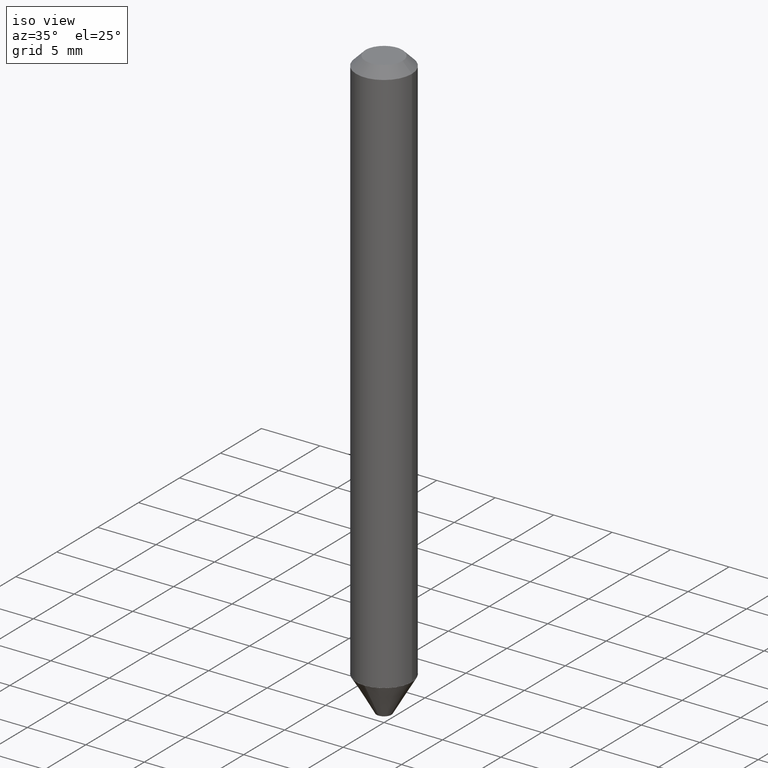
[diagram: clean part render]
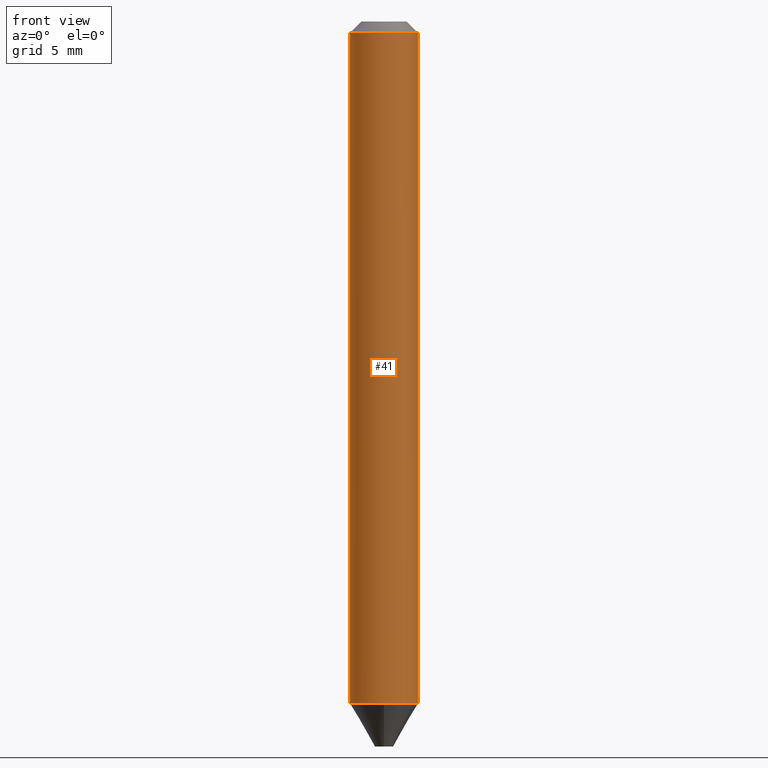
[diagram: tour spotlight — one face highlighted and labeled with its STEP entity id]
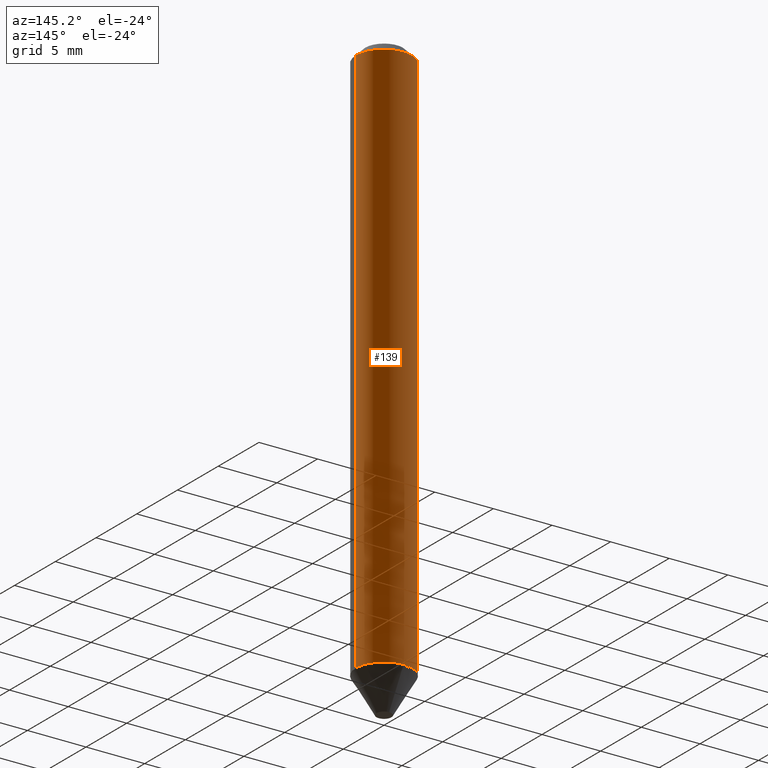
[diagram: tour spotlight — one face highlighted and labeled with its STEP entity id]
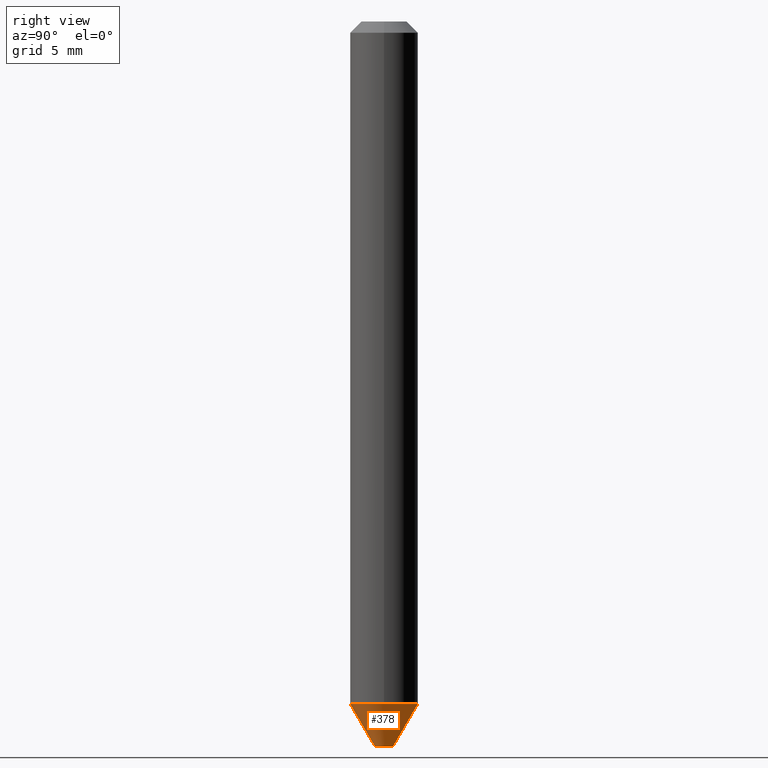
[diagram: tour spotlight — one face highlighted and labeled with its STEP entity id]
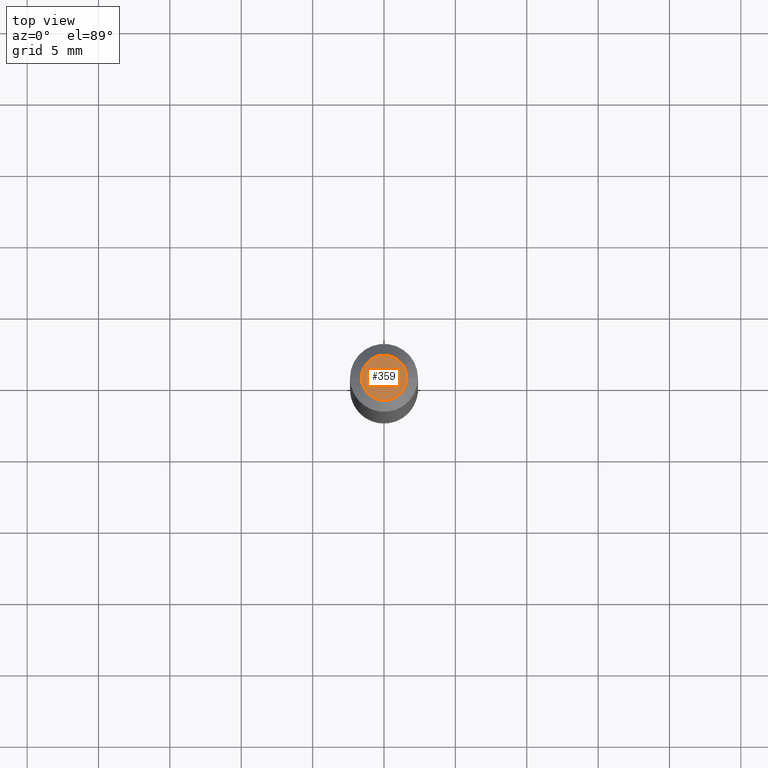
[diagram: tour spotlight — one face highlighted and labeled with its STEP entity id]
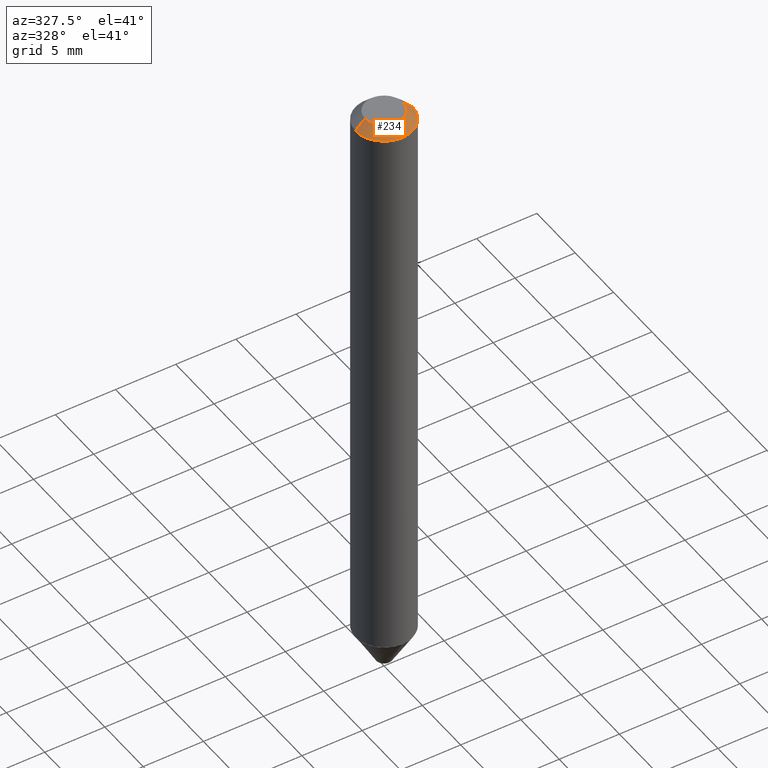
[diagram: tour spotlight — one face highlighted and labeled with its STEP entity id]
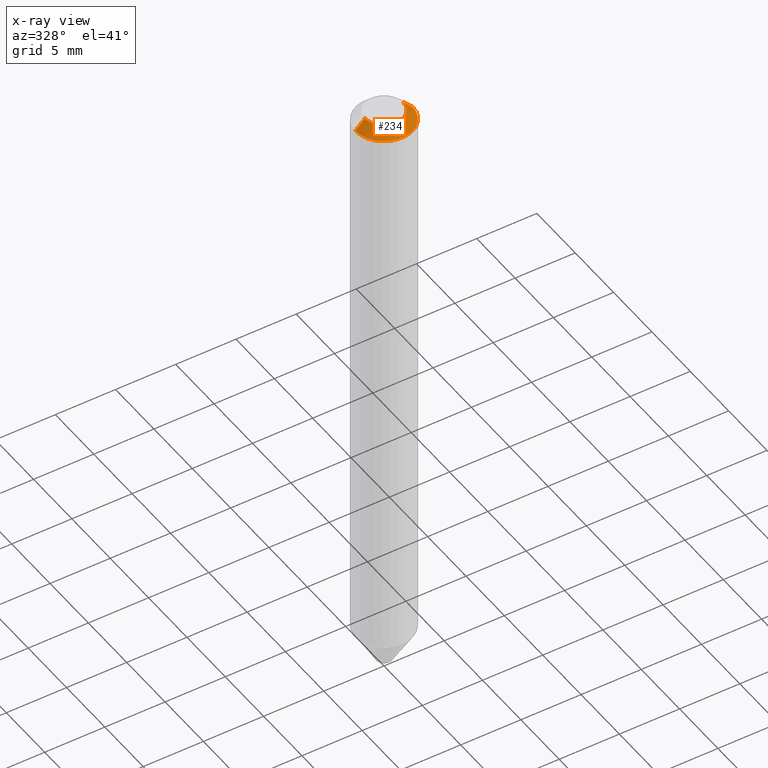
[diagram: x-ray of the same camera — body ghosted, this tour face saturated]
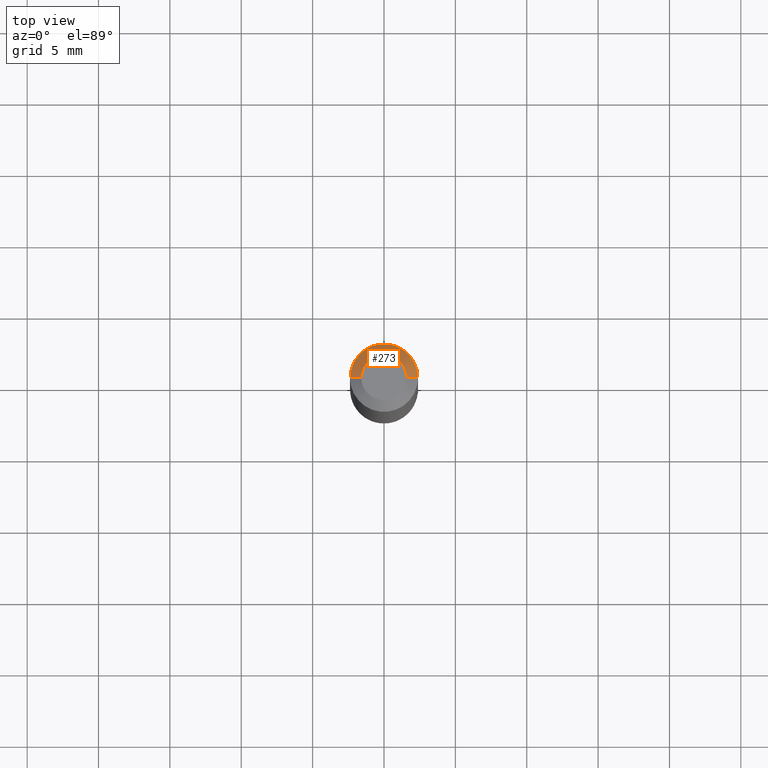
[diagram: tour spotlight — one face highlighted and labeled with its STEP entity id]
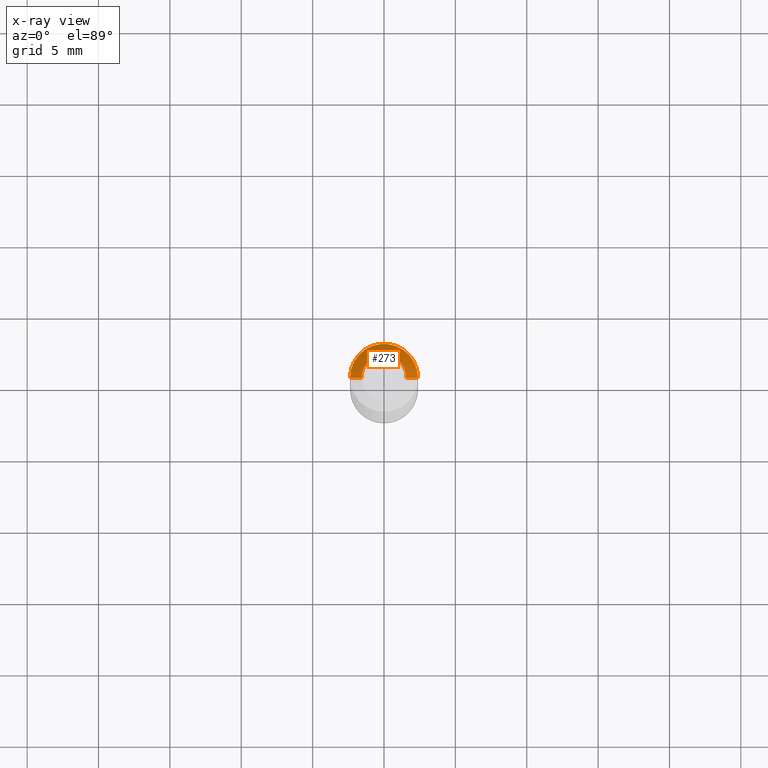
[diagram: x-ray of the same camera — body ghosted, this tour face saturated]
A machine part: a face-by-face anatomy tour. The part has 14 B-rep faces; the first image is the clean iso view, then the 6 largest visible faces are spotlighted one at a time (largest first), each with its STEP entity span.

Face 1 — front view, entity #41. In plain terms, the highlighted cylindrical surface (edge-blend (fillet) strip) has radius 2.3813 mm, axis along (-0, 0, 1).
Definition (entity closure, byte-faithful):
#19 = ORIENTED_EDGE ( 'NONE', *, *, #304, .F. ) ;
#29 = DIRECTION ( 'NONE',  ( -2.445468806185136597E-29, 3.491481338843145583E-15, 1.000000000000000000 ) ) ;
#41 = ADVANCED_FACE ( 'NONE', ( #410 ), #88, .T. ) ;
#42 = EDGE_LOOP ( 'NONE', ( #19, #360, #75, #89 ) ) ;
#66 = CARTESIAN_POINT ( 'NONE',  ( 0.09375000000000011102, -6.546527510330881944E-16, 4.571415727308695411E-30 ) ) ;
#75 = ORIENTED_EDGE ( 'NONE', *, *, #276, .T. ) ;
#76 = CARTESIAN_POINT ( 'NONE',  ( -0.09375000000000011102, 6.661338147750947131E-16, -4.611501647113979600E-30 ) ) ;
#88 = CYLINDRICAL_SURFACE ( 'NONE', #148, 0.09375000000000011102 ) ;
#89 = ORIENTED_EDGE ( 'NONE', *, *, #224, .F. ) ;
#94 = EDGE_CURVE ( 'NONE', #143, #262, #206, .T. ) ;
#113 = DIRECTION ( 'NONE',  ( -2.445468806185136597E-29, 3.491481338843145583E-15, 1.000000000000000000 ) ) ;
#143 = VERTEX_POINT ( 'NONE', #164 ) ;
#146 = VERTEX_POINT ( 'NONE', #229 ) ;
#148 = AXIS2_PLACEMENT_3D ( 'NONE', #306, #29, #402 ) ;
#163 = DIRECTION ( 'NONE',  ( -2.445468806185136877E-29, 3.491481338843145188E-15, 1.000000000000000000 ) ) ;
#164 = CARTESIAN_POINT ( 'NONE',  ( -0.09375000000000020817, -5.901068526673041974E-15, -1.880921506979639224 ) ) ;
#165 = CARTESIAN_POINT ( 'NONE',  ( 0.09375000000000020817, -7.221855092481226558E-15, -1.880921506979639224 ) ) ;
#169 = DIRECTION ( 'NONE',  ( -2.445468806185136877E-29, 3.491481338843145188E-15, 1.000000000000000000 ) ) ;
#183 = CIRCLE ( 'NONE', #294, 0.09375000000000001388 ) ;
#192 = DIRECTION ( 'NONE',  ( -2.445468806185136597E-29, 3.491481338843145583E-15, 1.000000000000000000 ) ) ;
#206 = CIRCLE ( 'NONE', #286, 0.09375000000000020817 ) ;
#207 = CARTESIAN_POINT ( 'NONE',  ( 0.09375000000000001388, -7.637615428719365062E-16, -0.03125000000000020123 ) ) ;
#215 = CARTESIAN_POINT ( 'NONE',  ( 4.599734872201446388E-29, -6.567202341448137476E-15, -1.880921506979639224 ) ) ;
#223 = LINE ( 'NONE', #66, #369 ) ;
#224 = EDGE_CURVE ( 'NONE', #146, #332, #183, .T. ) ;
#229 = CARTESIAN_POINT ( 'NONE',  ( -0.09375000000000001388, -2.672021751868397392E-15, -0.03125000000000020123 ) ) ;
#251 = DIRECTION ( 'NONE',  ( 1.000000000000000000, -6.982962677686268288E-15, 0.000000000000000000 ) ) ;
#262 = VERTEX_POINT ( 'NONE', #165 ) ;
#276 = EDGE_CURVE ( 'NONE', #262, #332, #223, .T. ) ;
#286 = AXIS2_PLACEMENT_3D ( 'NONE', #215, #113, #251 ) ;
#289 = LINE ( 'NONE', #76, #416 ) ;
#294 = AXIS2_PLACEMENT_3D ( 'NONE', #350, #192, #383 ) ;
#304 = EDGE_CURVE ( 'NONE', #143, #146, #289, .T. ) ;
#306 = CARTESIAN_POINT ( 'NONE',  ( 0.000000000000000000, 0.000000000000000000, 0.000000000000000000 ) ) ;
#332 = VERTEX_POINT ( 'NONE', #207 ) ;
#350 = CARTESIAN_POINT ( 'NONE',  ( 7.642090019328600035E-31, -1.091087918388489897E-16, -0.03125000000000020123 ) ) ;
#360 = ORIENTED_EDGE ( 'NONE', *, *, #94, .T. ) ;
#369 = VECTOR ( 'NONE', #163, 39.37007874015748143 ) ;
#383 = DIRECTION ( 'NONE',  ( 1.000000000000000000, -6.982962677686265922E-15, 0.000000000000000000 ) ) ;
#402 = DIRECTION ( 'NONE',  ( 1.000000000000000000, -6.982962677686265922E-15, 4.876176775795935793E-29 ) ) ;
#410 = FACE_OUTER_BOUND ( 'NONE', #42, .T. ) ;
#416 = VECTOR ( 'NONE', #169, 39.37007874015748143 ) ;

Face 2 — auxiliary view, entity #139. In plain terms, the highlighted cylindrical surface (edge-blend (fillet) strip) has radius 2.3813 mm, axis along (-0, 0, 1).
Definition (entity closure, byte-faithful):
#11 = ORIENTED_EDGE ( 'NONE', *, *, #120, .F. ) ;
#20 = AXIS2_PLACEMENT_3D ( 'NONE', #122, #96, #252 ) ;
#55 = AXIS2_PLACEMENT_3D ( 'NONE', #413, #199, #158 ) ;
#66 = CARTESIAN_POINT ( 'NONE',  ( 0.09375000000000011102, -6.546527510330881944E-16, 4.571415727308695411E-30 ) ) ;
#76 = CARTESIAN_POINT ( 'NONE',  ( -0.09375000000000011102, 6.661338147750947131E-16, -4.611501647113979600E-30 ) ) ;
#96 = DIRECTION ( 'NONE',  ( -2.445468806185136597E-29, 3.491481338843145583E-15, 1.000000000000000000 ) ) ;
#117 = CARTESIAN_POINT ( 'NONE',  ( 7.642090019328600035E-31, -1.091087918388489897E-16, -0.03125000000000020123 ) ) ;
#120 = EDGE_CURVE ( 'NONE', #332, #146, #225, .T. ) ;
#122 = CARTESIAN_POINT ( 'NONE',  ( 4.599734872201446388E-29, -6.567202341448137476E-15, -1.880921506979639224 ) ) ;
#139 = ADVANCED_FACE ( 'NONE', ( #187 ), #278, .T. ) ;
#143 = VERTEX_POINT ( 'NONE', #164 ) ;
#146 = VERTEX_POINT ( 'NONE', #229 ) ;
#152 = ORIENTED_EDGE ( 'NONE', *, *, #304, .T. ) ;
#158 = DIRECTION ( 'NONE',  ( 1.000000000000000000, -6.982962677686265922E-15, 4.876176775795935793E-29 ) ) ;
#163 = DIRECTION ( 'NONE',  ( -2.445468806185136877E-29, 3.491481338843145188E-15, 1.000000000000000000 ) ) ;
#164 = CARTESIAN_POINT ( 'NONE',  ( -0.09375000000000020817, -5.901068526673041974E-15, -1.880921506979639224 ) ) ;
#165 = CARTESIAN_POINT ( 'NONE',  ( 0.09375000000000020817, -7.221855092481226558E-15, -1.880921506979639224 ) ) ;
#169 = DIRECTION ( 'NONE',  ( -2.445468806185136877E-29, 3.491481338843145188E-15, 1.000000000000000000 ) ) ;
#171 = ORIENTED_EDGE ( 'NONE', *, *, #188, .T. ) ;
#181 = AXIS2_PLACEMENT_3D ( 'NONE', #117, #367, #370 ) ;
#187 = FACE_OUTER_BOUND ( 'NONE', #205, .T. ) ;
#188 = EDGE_CURVE ( 'NONE', #262, #143, #377, .T. ) ;
#199 = DIRECTION ( 'NONE',  ( -2.445468806185136597E-29, 3.491481338843145583E-15, 1.000000000000000000 ) ) ;
#205 = EDGE_LOOP ( 'NONE', ( #171, #152, #11, #210 ) ) ;
#207 = CARTESIAN_POINT ( 'NONE',  ( 0.09375000000000001388, -7.637615428719365062E-16, -0.03125000000000020123 ) ) ;
#210 = ORIENTED_EDGE ( 'NONE', *, *, #276, .F. ) ;
#223 = LINE ( 'NONE', #66, #369 ) ;
#225 = CIRCLE ( 'NONE', #181, 0.09375000000000001388 ) ;
#229 = CARTESIAN_POINT ( 'NONE',  ( -0.09375000000000001388, -2.672021751868397392E-15, -0.03125000000000020123 ) ) ;
#252 = DIRECTION ( 'NONE',  ( 1.000000000000000000, -6.982962677686268288E-15, 0.000000000000000000 ) ) ;
#262 = VERTEX_POINT ( 'NONE', #165 ) ;
#276 = EDGE_CURVE ( 'NONE', #262, #332, #223, .T. ) ;
#278 = CYLINDRICAL_SURFACE ( 'NONE', #55, 0.09375000000000011102 ) ;
#289 = LINE ( 'NONE', #76, #416 ) ;
#304 = EDGE_CURVE ( 'NONE', #143, #146, #289, .T. ) ;
#332 = VERTEX_POINT ( 'NONE', #207 ) ;
#367 = DIRECTION ( 'NONE',  ( -2.445468806185136597E-29, 3.491481338843145583E-15, 1.000000000000000000 ) ) ;
#369 = VECTOR ( 'NONE', #163, 39.37007874015748143 ) ;
#370 = DIRECTION ( 'NONE',  ( 1.000000000000000000, -6.982962677686265922E-15, 0.000000000000000000 ) ) ;
#377 = CIRCLE ( 'NONE', #20, 0.09375000000000020817 ) ;
#413 = CARTESIAN_POINT ( 'NONE',  ( 0.000000000000000000, 0.000000000000000000, 0.000000000000000000 ) ) ;
#416 = VECTOR ( 'NONE', #169, 39.37007874015748143 ) ;

Face 3 — right view, entity #378. In plain terms, the highlighted conical surface has half-angle 30.21 deg.
Definition (entity closure, byte-faithful):
#26 = EDGE_CURVE ( 'NONE', #82, #259, #405, .T. ) ;
#30 = DIRECTION ( 'NONE',  ( 2.450229196497135613E-29, -3.484664188971772409E-15, -1.000000000000000000 ) ) ;
#34 = CARTESIAN_POINT ( 'NONE',  ( 4.602182721202787017E-29, -6.570690414212044123E-15, -1.881921506979639114 ) ) ;
#36 = CARTESIAN_POINT ( 'NONE',  ( 6.546527510331342441E-16, 0.09374999999999353295, -1.881921506979639336 ) ) ;
#58 = CARTESIAN_POINT ( 'NONE',  ( -6.546527510330419474E-16, -0.09375000000000663358, -1.881921506979638670 ) ) ;
#61 = ORIENTED_EDGE ( 'NONE', *, *, #211, .T. ) ;
#82 = VERTEX_POINT ( 'NONE', #150 ) ;
#90 = EDGE_LOOP ( 'NONE', ( #395, #61, #213, #277 ) ) ;
#91 = DIRECTION ( 'NONE',  ( 2.450229196497135613E-29, -3.484664188971772409E-15, -1.000000000000000000 ) ) ;
#142 = CARTESIAN_POINT ( 'NONE',  ( 4.218847493576065508E-16, 0.02499999999999288555, -2.000000000000000444 ) ) ;
#150 = CARTESIAN_POINT ( 'NONE',  ( -4.146134089875742612E-16, -0.02500000000000685355, -2.000000000000000444 ) ) ;
#160 = EDGE_CURVE ( 'NONE', #323, #82, #401, .T. ) ;
#166 = VECTOR ( 'NONE', #347, 39.37007874015747433 ) ;
#193 = EDGE_CURVE ( 'NONE', #269, #259, #280, .T. ) ;
#196 = CARTESIAN_POINT ( 'NONE',  ( 4.891502092279659447E-29, -6.982154310327850672E-15, -2.000000000000000444 ) ) ;
#209 = DIRECTION ( 'NONE',  ( -6.982962677686266711E-15, -1.000000000000000000, 2.913971193241879189E-15 ) ) ;
#211 = EDGE_CURVE ( 'NONE', #323, #269, #315, .T. ) ;
#213 = ORIENTED_EDGE ( 'NONE', *, *, #193, .T. ) ;
#218 = AXIS2_PLACEMENT_3D ( 'NONE', #34, #91, #279 ) ;
#254 = CARTESIAN_POINT ( 'NONE',  ( -6.431716872910350342E-16, -0.09375000000000657807, -1.881921506979638670 ) ) ;
#259 = VERTEX_POINT ( 'NONE', #254 ) ;
#266 = FACE_OUTER_BOUND ( 'NONE', #90, .T. ) ;
#268 = CONICAL_SURFACE ( 'NONE', #303, 0.09375000000000005551, 0.5272581712179652547 ) ;
#269 = VERTEX_POINT ( 'NONE', #36 ) ;
#277 = ORIENTED_EDGE ( 'NONE', *, *, #26, .F. ) ;
#279 = DIRECTION ( 'NONE',  ( 6.982962677686266711E-15, 1.000000000000000000, -2.913971193241879189E-15 ) ) ;
#280 = CIRCLE ( 'NONE', #218, 0.09375000000000005551 ) ;
#284 = CARTESIAN_POINT ( 'NONE',  ( 6.661338147751401712E-16, 0.09374999999999349132, -1.881921506979639336 ) ) ;
#301 = DIRECTION ( 'NONE',  ( -3.513587825459242834E-15, -0.5031657747057287633, 0.8641899115152779087 ) ) ;
#303 = AXIS2_PLACEMENT_3D ( 'NONE', #319, #388, #209 ) ;
#315 = LINE ( 'NONE', #284, #166 ) ;
#319 = CARTESIAN_POINT ( 'NONE',  ( 4.602182721202787017E-29, -6.570690414212044123E-15, -1.881921506979639114 ) ) ;
#323 = VERTEX_POINT ( 'NONE', #142 ) ;
#347 = DIRECTION ( 'NONE',  ( 3.575207861002587345E-15, 0.5031657747057348695, 0.8641899115152744670 ) ) ;
#355 = VECTOR ( 'NONE', #301, 39.37007874015748143 ) ;
#378 = ADVANCED_FACE ( 'NONE', ( #266 ), #268, .T. ) ;
#379 = AXIS2_PLACEMENT_3D ( 'NONE', #196, #30, #411 ) ;
#388 = DIRECTION ( 'NONE',  ( -2.450229196497135613E-29, 3.484664188971772409E-15, 1.000000000000000000 ) ) ;
#395 = ORIENTED_EDGE ( 'NONE', *, *, #160, .F. ) ;
#401 = CIRCLE ( 'NONE', #379, 0.02499999999999986955 ) ;
#405 = LINE ( 'NONE', #58, #355 ) ;
#411 = DIRECTION ( 'NONE',  ( 6.982962677686265922E-15, 1.000000000000000000, 0.000000000000000000 ) ) ;

Face 4 — top view, entity #359. In plain terms, the highlighted planar face has unit normal (0, -0, -1).
Definition (entity closure, byte-faithful):
#1 = DIRECTION ( 'NONE',  ( 1.000000000000000000, -6.982962677686265922E-15, 4.876242311950516125E-29 ) ) ;
#28 = CARTESIAN_POINT ( 'NONE',  ( 0.06250000000000001388, -5.905308019953255522E-16, 3.827021247339070247E-18 ) ) ;
#43 = DIRECTION ( 'NONE',  ( 1.000000000000000000, -6.982962677686265922E-15, 4.876242311950516125E-29 ) ) ;
#46 = PLANE ( 'NONE',  #72 ) ;
#67 = CARTESIAN_POINT ( 'NONE',  ( -9.358861080966648015E-47, 1.336197326842804765E-32, 3.827021247335480313E-18 ) ) ;
#72 = AXIS2_PLACEMENT_3D ( 'NONE', #78, #261, #170 ) ;
#73 = VERTEX_POINT ( 'NONE', #28 ) ;
#78 = CARTESIAN_POINT ( 'NONE',  ( -4.679430540483324007E-47, 6.680986634214023823E-33, 1.913510623667740157E-18 ) ) ;
#110 = CIRCLE ( 'NONE', #356, 0.06250000000000001388 ) ;
#134 = ORIENTED_EDGE ( 'NONE', *, *, #172, .T. ) ;
#140 = DIRECTION ( 'NONE',  ( -2.445468806185136597E-29, 3.491481338843145583E-15, 1.000000000000000000 ) ) ;
#170 = DIRECTION ( 'NONE',  ( -1.000000000000000000, 6.982962677686265922E-15, -4.876176775795935793E-29 ) ) ;
#172 = EDGE_CURVE ( 'NONE', #180, #73, #344, .T. ) ;
#180 = VERTEX_POINT ( 'NONE', #317 ) ;
#185 = EDGE_LOOP ( 'NONE', ( #134, #363 ) ) ;
#203 = AXIS2_PLACEMENT_3D ( 'NONE', #343, #376, #1 ) ;
#261 = DIRECTION ( 'NONE',  ( 2.438088387897960049E-29, -3.491481338843145188E-15, -1.000000000000000000 ) ) ;
#287 = EDGE_CURVE ( 'NONE', #73, #180, #110, .T. ) ;
#291 = FACE_OUTER_BOUND ( 'NONE', #185, .T. ) ;
#317 = CARTESIAN_POINT ( 'NONE',  ( -0.06250000000000001388, 4.909895632748152337E-16, 3.827021247332237047E-18 ) ) ;
#343 = CARTESIAN_POINT ( 'NONE',  ( -9.358861080966648015E-47, 1.336197326842804765E-32, 3.827021247335480313E-18 ) ) ;
#344 = CIRCLE ( 'NONE', #203, 0.06250000000000001388 ) ;
#356 = AXIS2_PLACEMENT_3D ( 'NONE', #67, #140, #43 ) ;
#359 = ADVANCED_FACE ( 'NONE', ( #291 ), #46, .F. ) ;
#363 = ORIENTED_EDGE ( 'NONE', *, *, #287, .T. ) ;
#376 = DIRECTION ( 'NONE',  ( -2.445468806185136597E-29, 3.491481338843145583E-15, 1.000000000000000000 ) ) ;

Face 5 — auxiliary view, entity #234. An x-ray twin of the same camera follows (body ghosted, this face saturated) — the face is partly hidden behind the body. In plain terms, the highlighted conical surface has half-angle 45 deg.
Definition (entity closure, byte-faithful):
#1 = DIRECTION ( 'NONE',  ( 1.000000000000000000, -6.982962677686265922E-15, 4.876242311950516125E-29 ) ) ;
#6 = DIRECTION ( 'NONE',  ( 0.7071067811865452413, -7.319954787623248157E-15, -0.7071067811865497932 ) ) ;
#8 = CARTESIAN_POINT ( 'NONE',  ( 0.09375000000000001388, -7.522804791299300860E-16, -0.03125000000000020123 ) ) ;
#16 = CARTESIAN_POINT ( 'NONE',  ( -0.09375000000000001388, 5.455439591942385021E-16, -0.03125000000000020123 ) ) ;
#28 = CARTESIAN_POINT ( 'NONE',  ( 0.06250000000000001388, -5.905308019953255522E-16, 3.827021247339070247E-18 ) ) ;
#33 = AXIS2_PLACEMENT_3D ( 'NONE', #131, #380, #230 ) ;
#40 = CONICAL_SURFACE ( 'NONE', #33, 0.09375000000000001388, 0.7853981633974450594 ) ;
#44 = ORIENTED_EDGE ( 'NONE', *, *, #224, .T. ) ;
#64 = VECTOR ( 'NONE', #6, 39.37007874015748143 ) ;
#73 = VERTEX_POINT ( 'NONE', #28 ) ;
#131 = CARTESIAN_POINT ( 'NONE',  ( 7.642090019328600035E-31, -1.091087918388489897E-16, -0.03125000000000020123 ) ) ;
#146 = VERTEX_POINT ( 'NONE', #229 ) ;
#172 = EDGE_CURVE ( 'NONE', #180, #73, #344, .T. ) ;
#180 = VERTEX_POINT ( 'NONE', #317 ) ;
#183 = CIRCLE ( 'NONE', #294, 0.09375000000000001388 ) ;
#192 = DIRECTION ( 'NONE',  ( -2.445468806185136597E-29, 3.491481338843145583E-15, 1.000000000000000000 ) ) ;
#201 = FACE_OUTER_BOUND ( 'NONE', #397, .T. ) ;
#203 = AXIS2_PLACEMENT_3D ( 'NONE', #343, #376, #1 ) ;
#204 = LINE ( 'NONE', #8, #64 ) ;
#207 = CARTESIAN_POINT ( 'NONE',  ( 0.09375000000000001388, -7.637615428719365062E-16, -0.03125000000000020123 ) ) ;
#224 = EDGE_CURVE ( 'NONE', #146, #332, #183, .T. ) ;
#229 = CARTESIAN_POINT ( 'NONE',  ( -0.09375000000000001388, -2.672021751868397392E-15, -0.03125000000000020123 ) ) ;
#230 = DIRECTION ( 'NONE',  ( -1.000000000000000000, 6.982962677686265922E-15, 0.000000000000000000 ) ) ;
#234 = ADVANCED_FACE ( 'NONE', ( #201 ), #40, .T. ) ;
#237 = VECTOR ( 'NONE', #394, 39.37007874015748143 ) ;
#293 = ORIENTED_EDGE ( 'NONE', *, *, #327, .T. ) ;
#294 = AXIS2_PLACEMENT_3D ( 'NONE', #350, #192, #383 ) ;
#298 = LINE ( 'NONE', #16, #237 ) ;
#317 = CARTESIAN_POINT ( 'NONE',  ( -0.06250000000000001388, 4.909895632748152337E-16, 3.827021247332237047E-18 ) ) ;
#327 = EDGE_CURVE ( 'NONE', #180, #146, #298, .T. ) ;
#332 = VERTEX_POINT ( 'NONE', #207 ) ;
#343 = CARTESIAN_POINT ( 'NONE',  ( -9.358861080966648015E-47, 1.336197326842804765E-32, 3.827021247335480313E-18 ) ) ;
#344 = CIRCLE ( 'NONE', #203, 0.06250000000000001388 ) ;
#350 = CARTESIAN_POINT ( 'NONE',  ( 7.642090019328600035E-31, -1.091087918388489897E-16, -0.03125000000000020123 ) ) ;
#358 = ORIENTED_EDGE ( 'NONE', *, *, #172, .F. ) ;
#364 = EDGE_CURVE ( 'NONE', #73, #332, #204, .T. ) ;
#376 = DIRECTION ( 'NONE',  ( -2.445468806185136597E-29, 3.491481338843145583E-15, 1.000000000000000000 ) ) ;
#380 = DIRECTION ( 'NONE',  ( 2.445468806185136597E-29, -3.491481338843145583E-15, -1.000000000000000000 ) ) ;
#383 = DIRECTION ( 'NONE',  ( 1.000000000000000000, -6.982962677686265922E-15, 0.000000000000000000 ) ) ;
#387 = ORIENTED_EDGE ( 'NONE', *, *, #364, .F. ) ;
#394 = DIRECTION ( 'NONE',  ( -0.7071067811865452413, 2.468850131082233000E-15, -0.7071067811865497932 ) ) ;
#397 = EDGE_LOOP ( 'NONE', ( #387, #358, #293, #44 ) ) ;

Face 6 — top view, entity #273. An x-ray twin of the same camera follows (body ghosted, this face saturated) — the face is partly hidden behind the body. In plain terms, the highlighted conical surface has half-angle 45 deg.
Definition (entity closure, byte-faithful):
#3 = DIRECTION ( 'NONE',  ( 2.445468806185136597E-29, -3.491481338843145583E-15, -1.000000000000000000 ) ) ;
#6 = DIRECTION ( 'NONE',  ( 0.7071067811865452413, -7.319954787623248157E-15, -0.7071067811865497932 ) ) ;
#8 = CARTESIAN_POINT ( 'NONE',  ( 0.09375000000000001388, -7.522804791299300860E-16, -0.03125000000000020123 ) ) ;
#15 = ORIENTED_EDGE ( 'NONE', *, *, #120, .T. ) ;
#16 = CARTESIAN_POINT ( 'NONE',  ( -0.09375000000000001388, 5.455439591942385021E-16, -0.03125000000000020123 ) ) ;
#28 = CARTESIAN_POINT ( 'NONE',  ( 0.06250000000000001388, -5.905308019953255522E-16, 3.827021247339070247E-18 ) ) ;
#43 = DIRECTION ( 'NONE',  ( 1.000000000000000000, -6.982962677686265922E-15, 4.876242311950516125E-29 ) ) ;
#64 = VECTOR ( 'NONE', #6, 39.37007874015748143 ) ;
#67 = CARTESIAN_POINT ( 'NONE',  ( -9.358861080966648015E-47, 1.336197326842804765E-32, 3.827021247335480313E-18 ) ) ;
#73 = VERTEX_POINT ( 'NONE', #28 ) ;
#74 = AXIS2_PLACEMENT_3D ( 'NONE', #348, #3, #313 ) ;
#105 = ORIENTED_EDGE ( 'NONE', *, *, #327, .F. ) ;
#110 = CIRCLE ( 'NONE', #356, 0.06250000000000001388 ) ;
#117 = CARTESIAN_POINT ( 'NONE',  ( 7.642090019328600035E-31, -1.091087918388489897E-16, -0.03125000000000020123 ) ) ;
#119 = ORIENTED_EDGE ( 'NONE', *, *, #287, .F. ) ;
#120 = EDGE_CURVE ( 'NONE', #332, #146, #225, .T. ) ;
#140 = DIRECTION ( 'NONE',  ( -2.445468806185136597E-29, 3.491481338843145583E-15, 1.000000000000000000 ) ) ;
#141 = ORIENTED_EDGE ( 'NONE', *, *, #364, .T. ) ;
#146 = VERTEX_POINT ( 'NONE', #229 ) ;
#180 = VERTEX_POINT ( 'NONE', #317 ) ;
#181 = AXIS2_PLACEMENT_3D ( 'NONE', #117, #367, #370 ) ;
#204 = LINE ( 'NONE', #8, #64 ) ;
#207 = CARTESIAN_POINT ( 'NONE',  ( 0.09375000000000001388, -7.637615428719365062E-16, -0.03125000000000020123 ) ) ;
#225 = CIRCLE ( 'NONE', #181, 0.09375000000000001388 ) ;
#229 = CARTESIAN_POINT ( 'NONE',  ( -0.09375000000000001388, -2.672021751868397392E-15, -0.03125000000000020123 ) ) ;
#237 = VECTOR ( 'NONE', #394, 39.37007874015748143 ) ;
#273 = ADVANCED_FACE ( 'NONE', ( #285 ), #316, .T. ) ;
#285 = FACE_OUTER_BOUND ( 'NONE', #362, .T. ) ;
#287 = EDGE_CURVE ( 'NONE', #73, #180, #110, .T. ) ;
#298 = LINE ( 'NONE', #16, #237 ) ;
#313 = DIRECTION ( 'NONE',  ( -1.000000000000000000, 6.982962677686265922E-15, 0.000000000000000000 ) ) ;
#316 = CONICAL_SURFACE ( 'NONE', #74, 0.09375000000000001388, 0.7853981633974450594 ) ;
#317 = CARTESIAN_POINT ( 'NONE',  ( -0.06250000000000001388, 4.909895632748152337E-16, 3.827021247332237047E-18 ) ) ;
#327 = EDGE_CURVE ( 'NONE', #180, #146, #298, .T. ) ;
#332 = VERTEX_POINT ( 'NONE', #207 ) ;
#348 = CARTESIAN_POINT ( 'NONE',  ( 7.642090019328600035E-31, -1.091087918388489897E-16, -0.03125000000000020123 ) ) ;
#356 = AXIS2_PLACEMENT_3D ( 'NONE', #67, #140, #43 ) ;
#362 = EDGE_LOOP ( 'NONE', ( #119, #141, #15, #105 ) ) ;
#364 = EDGE_CURVE ( 'NONE', #73, #332, #204, .T. ) ;
#367 = DIRECTION ( 'NONE',  ( -2.445468806185136597E-29, 3.491481338843145583E-15, 1.000000000000000000 ) ) ;
#370 = DIRECTION ( 'NONE',  ( 1.000000000000000000, -6.982962677686265922E-15, 0.000000000000000000 ) ) ;
#394 = DIRECTION ( 'NONE',  ( -0.7071067811865452413, 2.468850131082233000E-15, -0.7071067811865497932 ) ) ;